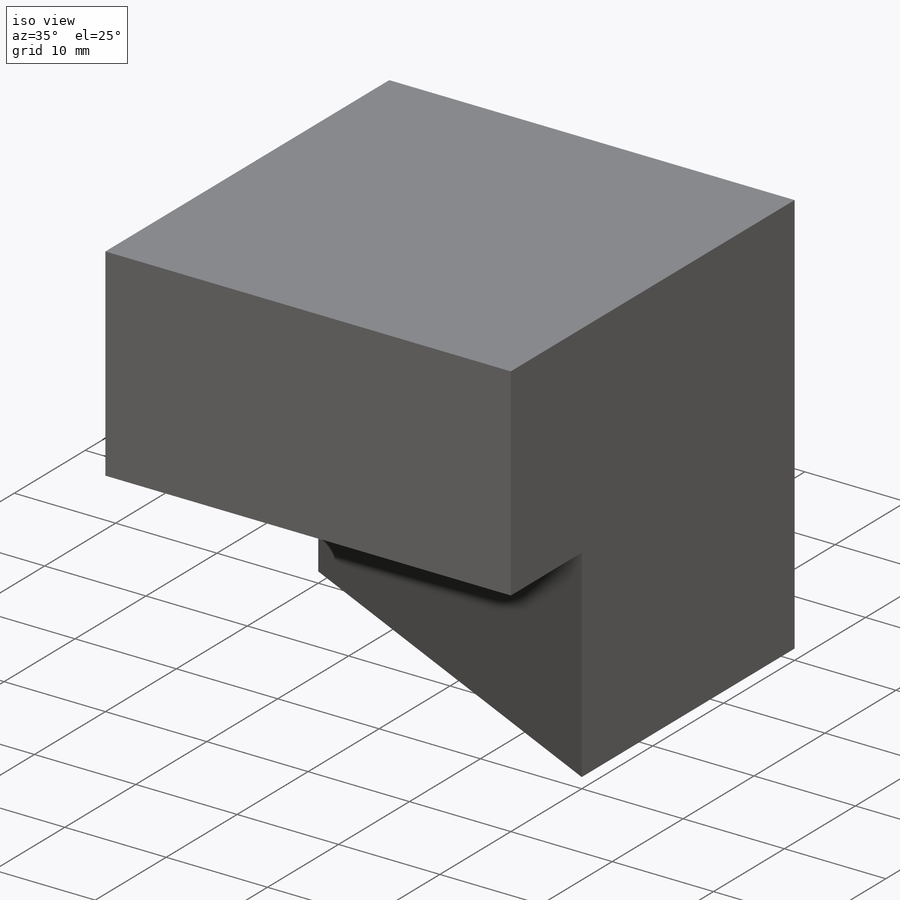
[diagram: iso view]
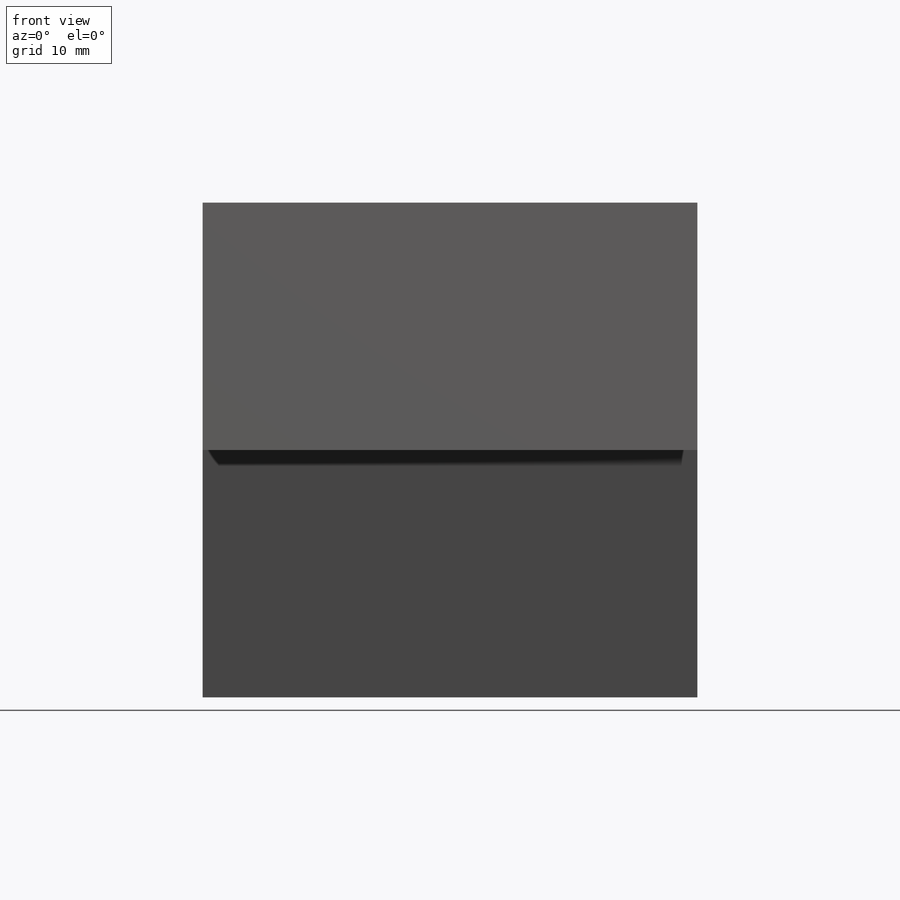
[diagram: front view]
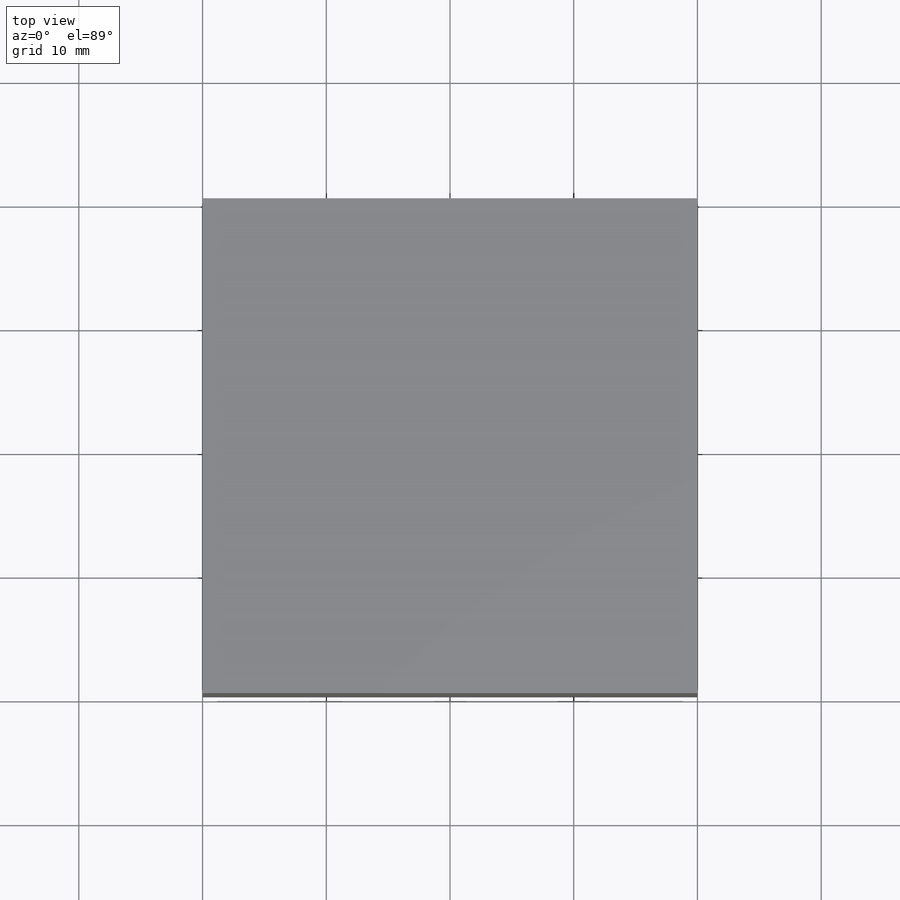
[diagram: top view]
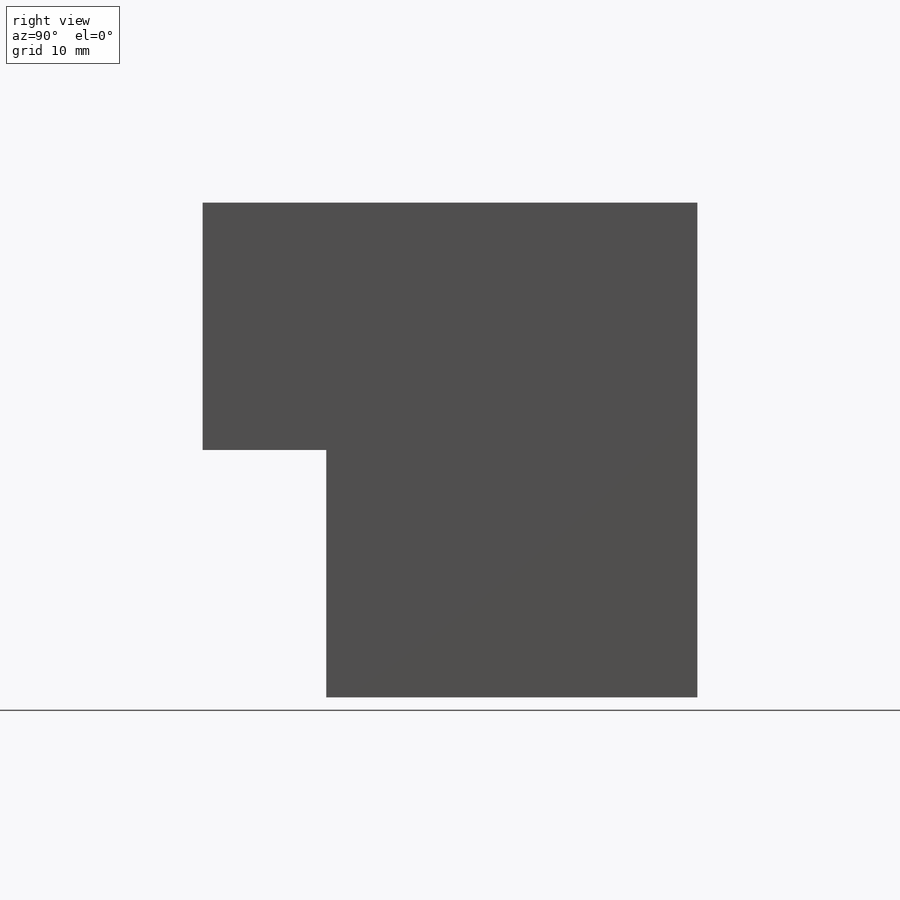
[diagram: right view]
SOLIDWORKS PART (.sldprt)
format: sldprt  version: not decoded by parser v0  size: 143,360 bytes
history: native  units: mm
features: sketch x5, plane x3, extrude x2, cut_extrude x2, material x1 (+13 scaffold rows collapsed)
feature tree (26):
  scaffold x13  (default folders/planes/origin — collapsed)
  material  "Material <not specified>"
  sketch  "Sketch1"  dims[c1.D1=~53.419953mm c1.D2=~71.360994mm c2.D1=40.0mm c2.D2=40.0mm]
  extrude  "Boss-Extrude1"  Depth=40mm
  sketch  "Sketch2"  dims[c1.D1=~12.112112mm c1.D2=~7.115505mm c2.D1=10.0mm c2.D2=20.0mm]
  cut_extrude  "Cut-Extrude1"  Depth=40mm
  sketch  "Sketch3"  dims[c1.D1=~12.336813mm c1.D2=~13.099291mm c2.D1=20.0mm c2.D2=20.0mm]
  cut_extrude  "Cut-Extrude3"  Depth=47mm
  plane  "Plane1"
  plane  "Plane2"  Offset=20mm
  sketch  "Sketch9"  dims[D1=10.0mm]
  plane  "Plane3"
  sketch  "Sketch10"  dims[D1=~44.72136mm]
  extrude  "Boss-Extrude5"  Depth=20mm
decode coverage: 9 of 9 modeling features carry decoded parameters
note: ~ marks probable driven/reference dimensions
note: suppression state not decoded; provenance and decode notes live in map.json
